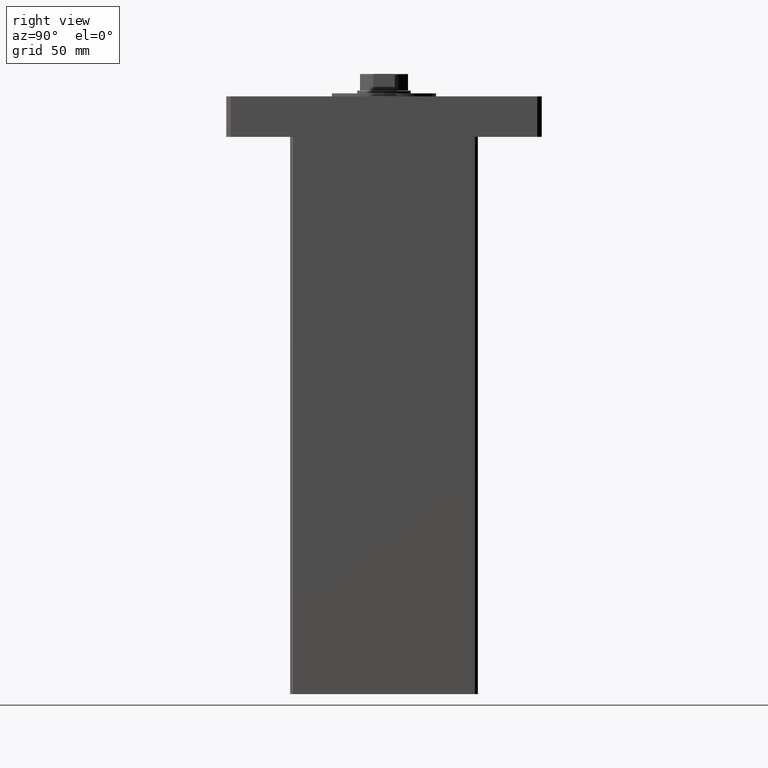
[diagram: clean part render]
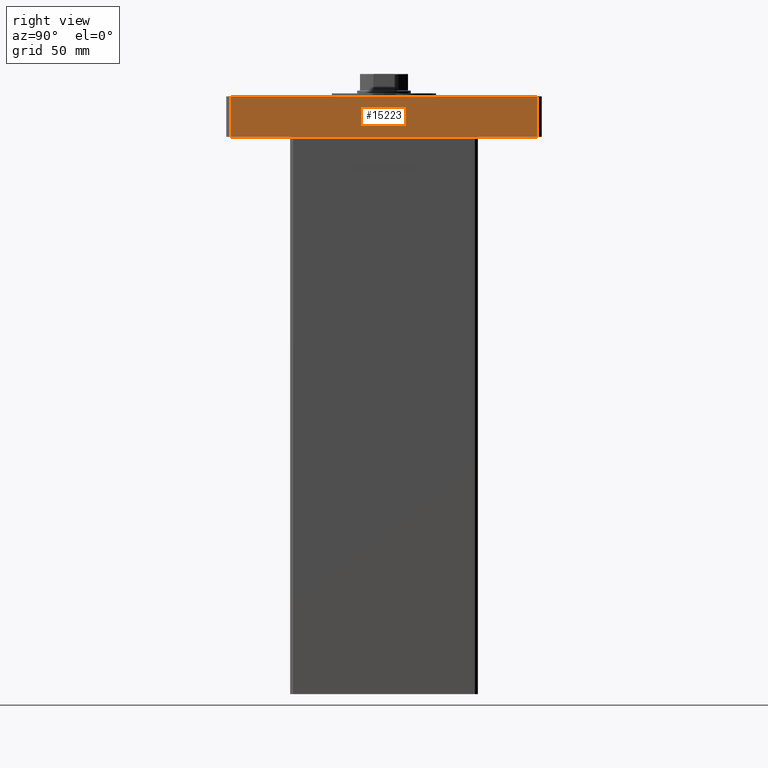
[diagram: same view with one face highlighted and labeled with its STEP entity id]
A machine part, right view. The second image highlights one B-rep face of the part: STEP entity #15223.
In plain terms, the highlighted planar face has unit normal (-1, 0, 0).
Its self-contained STEP definition (entity closure, byte-faithful):
#833 = ORIENTED_EDGE ( 'NONE', *, *, #52552, .T. ) ;
#1059 = VECTOR ( 'NONE', #29553, 1000.000000000000000 ) ;
#3376 = VECTOR ( 'NONE', #8265, 1000.000000000000000 ) ;
#5734 = VERTEX_POINT ( 'NONE', #34669 ) ;
#7284 = DIRECTION ( 'NONE',  ( 6.802837160693364103E-17, 1.000000000000000000, 0.000000000000000000 ) ) ;
#8265 = DIRECTION ( 'NONE',  ( -0.000000000000000000, -0.000000000000000000, -1.000000000000000000 ) ) ;
#8391 = CARTESIAN_POINT ( 'NONE',  ( 75.00000000000000000, -101.9999999999999005, 27.00000000000000000 ) ) ;
#9240 = LINE ( 'NONE', #13315, #1059 ) ;
#11617 = CARTESIAN_POINT ( 'NONE',  ( 75.00000000000000000, -101.9999999999999005, 0.000000000000000000 ) ) ;
#13315 = CARTESIAN_POINT ( 'NONE',  ( 75.00000000000001421, 102.0000000000000142, 27.00000000000000000 ) ) ;
#15159 = VERTEX_POINT ( 'NONE', #43731 ) ;
#15223 = ADVANCED_FACE ( 'NONE', ( #35310 ), #35038, .F. ) ;
#17769 = LINE ( 'NONE', #8391, #22461 ) ;
#17777 = ORIENTED_EDGE ( 'NONE', *, *, #48283, .T. ) ;
#22461 = VECTOR ( 'NONE', #49569, 1000.000000000000000 ) ;
#24141 = EDGE_CURVE ( 'NONE', #15159, #5734, #9240, .T. ) ;
#26934 = DIRECTION ( 'NONE',  ( -1.000000000000000000, 6.802837160693364103E-17, 0.000000000000000000 ) ) ;
#27730 = VECTOR ( 'NONE', #7284, 1000.000000000000000 ) ;
#29457 = ORIENTED_EDGE ( 'NONE', *, *, #49739, .F. ) ;
#29553 = DIRECTION ( 'NONE',  ( -0.000000000000000000, -0.000000000000000000, -1.000000000000000000 ) ) ;
#30654 = CARTESIAN_POINT ( 'NONE',  ( 75.00000000000000000, -101.9999999999999005, 0.000000000000000000 ) ) ;
#31168 = AXIS2_PLACEMENT_3D ( 'NONE', #47801, #26934, #43466 ) ;
#34156 = EDGE_LOOP ( 'NONE', ( #833, #36542, #29457, #17777 ) ) ;
#34669 = CARTESIAN_POINT ( 'NONE',  ( 75.00000000000001421, 102.0000000000000142, 0.000000000000000000 ) ) ;
#35038 = PLANE ( 'NONE',  #31168 ) ;
#35310 = FACE_OUTER_BOUND ( 'NONE', #34156, .T. ) ;
#36542 = ORIENTED_EDGE ( 'NONE', *, *, #24141, .F. ) ;
#39124 = CARTESIAN_POINT ( 'NONE',  ( 75.00000000000000000, -101.9999999999999005, 27.00000000000000000 ) ) ;
#42495 = VERTEX_POINT ( 'NONE', #39124 ) ;
#43466 = DIRECTION ( 'NONE',  ( -6.802837160693364103E-17, -1.000000000000000000, 0.000000000000000000 ) ) ;
#43731 = CARTESIAN_POINT ( 'NONE',  ( 75.00000000000001421, 102.0000000000000142, 27.00000000000000000 ) ) ;
#44407 = LINE ( 'NONE', #11617, #27730 ) ;
#44579 = LINE ( 'NONE', #53222, #3376 ) ;
#47801 = CARTESIAN_POINT ( 'NONE',  ( 75.00000000000000000, -101.9999999999999005, 27.00000000000000000 ) ) ;
#48283 = EDGE_CURVE ( 'NONE', #42495, #51991, #44579, .T. ) ;
#49569 = DIRECTION ( 'NONE',  ( 6.802837160693364103E-17, 1.000000000000000000, 0.000000000000000000 ) ) ;
#49739 = EDGE_CURVE ( 'NONE', #42495, #15159, #17769, .T. ) ;
#51991 = VERTEX_POINT ( 'NONE', #30654 ) ;
#52552 = EDGE_CURVE ( 'NONE', #51991, #5734, #44407, .T. ) ;
#53222 = CARTESIAN_POINT ( 'NONE',  ( 75.00000000000000000, -101.9999999999999005, 27.00000000000000000 ) ) ;